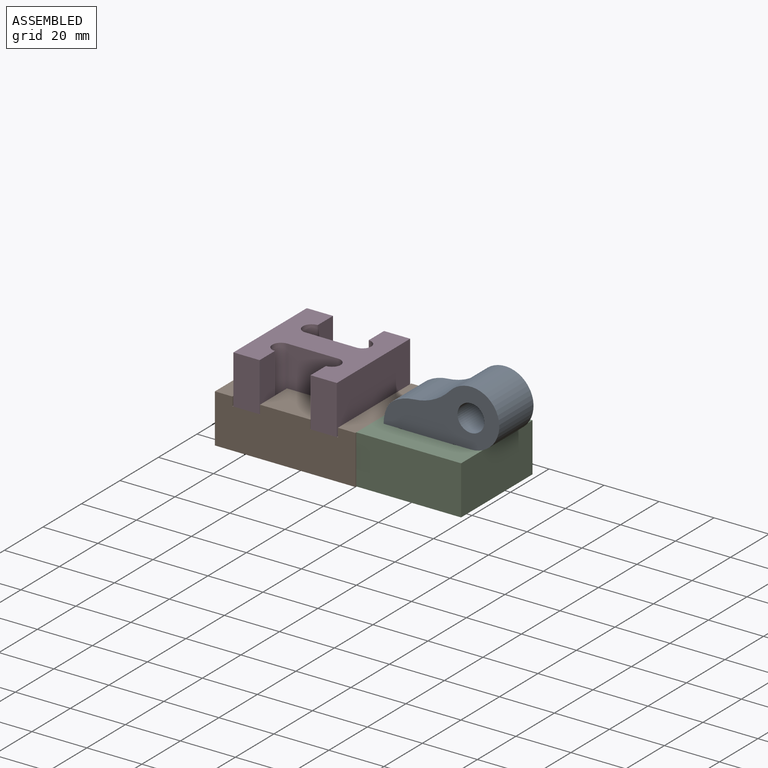
[diagram: assembled view]
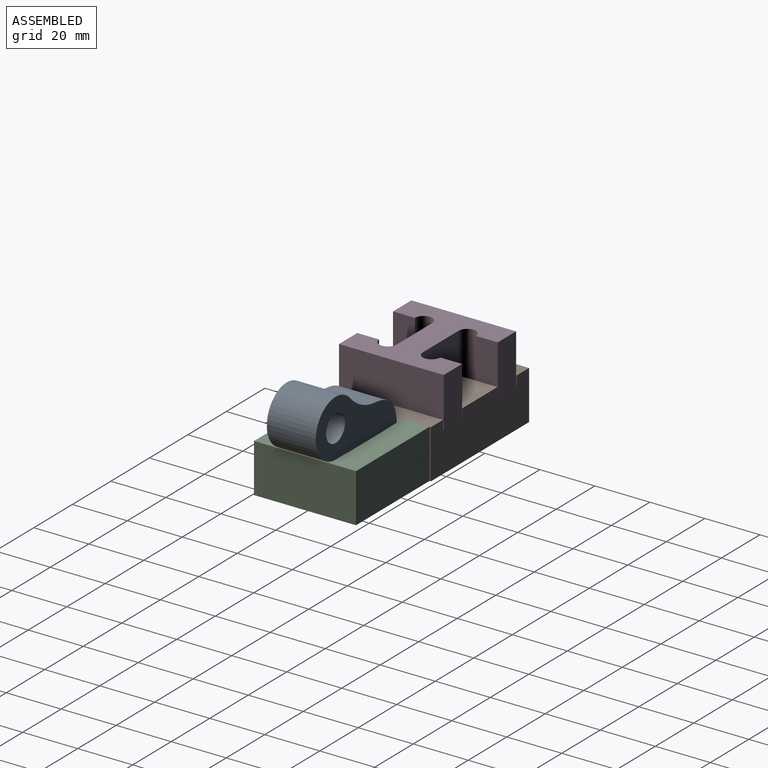
[diagram: assembled view, second angle]
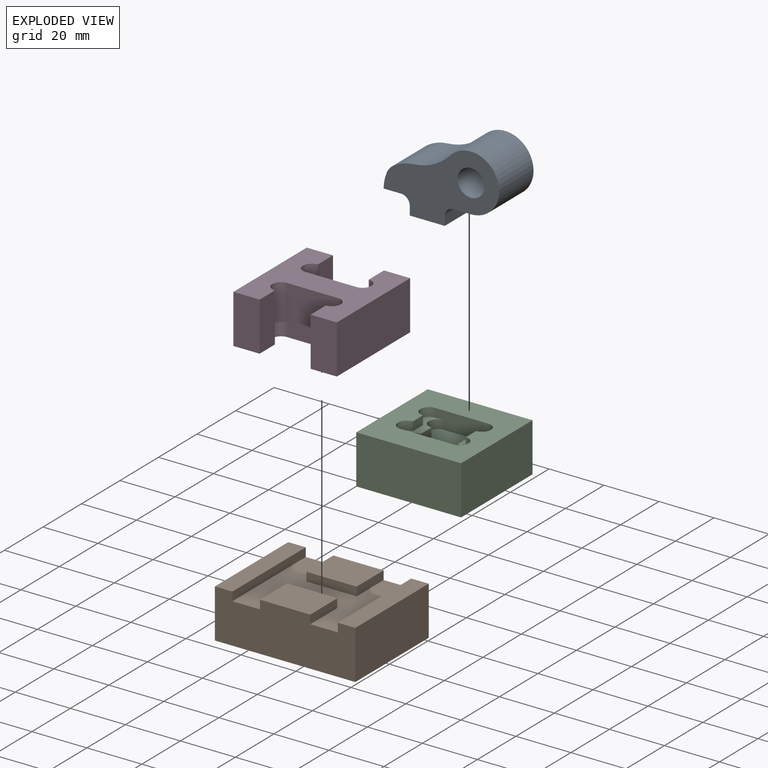
[diagram: exploded view]
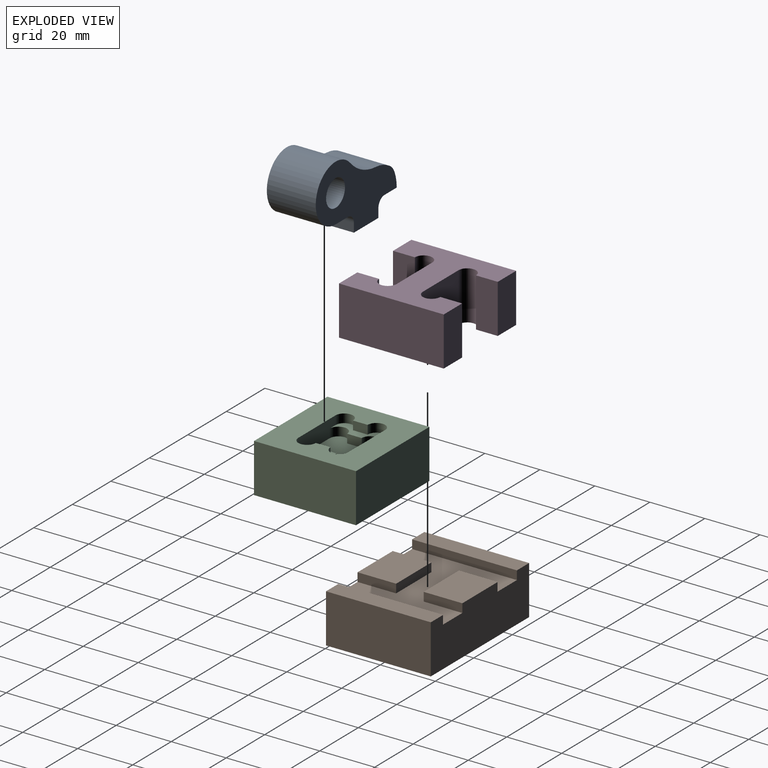
[diagram: exploded view, second angle]
ASSEMBLY  parts=4 mates=3
PART A: 15 faces, bbox 42.1x27x17.8 mm
  f0: plane 17.78x6.35mm, normal (0,-1,0), area 112.9mm2, adj f1,f12,f13,f14
  f1: cylinder r=10.32mm len=20.64mm, axis (0,0,1), area 728.9mm2, adj f0,f2,f13,f14
  f2: cylinder r=19.6mm len=17.78mm, axis (0,0,1), area 267.1mm2, adj f1,f3,f13,f14
  f3: cylinder r=15.21mm len=17.78mm, axis (0,0,1), area 139.4mm2, adj f2,f4,f13,f14
  f4: cylinder r=6.48mm len=17.78mm, axis (0,0,1), area 66.8mm2, adj f3,f5,f13,f14
  f5: cylinder r=14.11mm len=17.78mm, axis (0,0,1), area 103.1mm2, adj f4,f6,f13,f14
  f6: plane 17.78x6.35mm, normal (0,-1,0), area 112.9mm2, adj f5,f7,f13,f14
  f7: cylinder r=3.17mm len=17.78mm, axis (0,0,1), area 88.7mm2, adj f6,f8,f13,f14
  f8: plane 17.78x3.18mm, normal (-1,0,0), area 56.5mm2, adj f7,f9,f13,f14
  f9: plane 17.78x12.7mm, normal (0,-1,0), area 225.8mm2, adj f8,f10,f13,f14
  f10: plane 17.78x3.18mm, normal (1,0,0), area 56.5mm2, adj f9,f12,f13,f14
  f11: cylinder r=4.89mm len=17.78mm, axis (0,0,1), area 546.2mm2, adj f13,f14
  f12: cylinder r=3.17mm len=17.78mm, axis (0,0,1), area 88.7mm2, adj f0,f10,f13,f14
  f13: plane 42.07x26.99mm, normal (0,0,-1), area 594.6mm2, adj f0,f1,f2,f3,f4,f5,f6,f7
  f14: plane 42.07x26.99mm, normal (0,0,1), area 594.6mm2, adj f0,f1,f2,f3,f4,f5,f6,f7
PART B: 18 faces, bbox 51.1x38.1x17.8 mm
  f0: plane 51.05x17.78mm, normal (0,-1,0), area 844mm2, adj f1,f2,f3,f5,f6,f7,f9,f10
  f1: plane 18.29x14.03mm, normal (0,0,1), area 256.6mm2, adj f0,f10,f11,f12
  f2: plane 38.1x6.35mm, normal (0,0,1), area 241.9mm2, adj f0,f4,f6,f13
  f3: plane 38.1x6.35mm, normal (0,0,1), area 241.9mm2, adj f0,f4,f5,f9
  f4: plane 51.05x17.78mm, normal (0,1,0), area 844mm2, adj f2,f3,f5,f6,f7,f8,f9,f13
  f5: plane 38.1x17.78mm, normal (-1,0,0), area 677.4mm2, adj f0,f3,f4,f7
  f6: plane 38.1x17.78mm, normal (1,0,0), area 677.4mm2, adj f0,f2,f4,f7
  f7: plane 51.05x38.1mm, normal (0,0,-1), area 1945.2mm2, adj f0,f4,f5,f6
  f8: plane 18.29x14.03mm, normal (0,0,1), area 256.6mm2, adj f4,f14,f15,f16
  f9: plane 38.1x3.18mm, normal (1,0,0), area 121mm2, adj f0,f3,f4,f17
  f10: plane 14.03x3.18mm, normal (-1,0,0), area 44.6mm2, adj f0,f1,f11,f17
  f11: plane 18.29x3.18mm, normal (0,1,0), area 58.1mm2, adj f1,f10,f12,f17
  f12: plane 14.03x3.18mm, normal (1,0,0), area 44.6mm2, adj f0,f1,f11,f17
  f13: plane 38.1x3.18mm, normal (-1,0,0), area 121mm2, adj f0,f2,f4,f17
  f14: plane 14.03x3.18mm, normal (1,0,0), area 44.6mm2, adj f4,f8,f15,f17
  f15: plane 18.29x3.18mm, normal (0,-1,0), area 58.1mm2, adj f8,f14,f16,f17
  f16: plane 14.03x3.18mm, normal (-1,0,0), area 44.6mm2, adj f4,f8,f15,f17
  f17: plane 38.35x38.1mm, normal (0,0,1), area 948mm2, adj f0,f4,f9,f10,f11,f12,f13,f14
PART C: 23 faces, bbox 38.1x37.1x17.8 mm
  f0: plane 18.03x6.22mm, normal (0,0,1), area 55mm2, adj f7,f11,f12,f13,f14,f16,f17,f18
  f1: plane 38.1x17.78mm, normal (0,-1,0), area 677.4mm2, adj f2,f4,f5,f6
  f2: plane 37.08x17.78mm, normal (1,0,0), area 659.4mm2, adj f1,f3,f5,f6
  f3: plane 38.1x17.78mm, normal (0,1,0), area 677.4mm2, adj f2,f4,f5,f6
  f4: plane 37.08x17.78mm, normal (-1,0,0), area 659.4mm2, adj f1,f3,f5,f6
  f5: plane 38.1x37.08mm, normal (0,0,-1), area 1412.9mm2, adj f1,f2,f3,f4
  f6: plane 38.1x37.08mm, normal (0,0,1), area 1001.4mm2, adj f1,f2,f3,f4,f7,f8,f9,f10
  f7: plane 19.3x6.35mm, normal (0,-1,0), area 103.2mm2, adj f0,f6,f8,f14,f15,f18,f19,f22
  f8: cylinder r=3.17mm len=6.35mm, axis (0,0,1), area 31.7mm2, adj f6,f7,f9,f15
  f9: plane 5.33x3.18mm, normal (1,0,0), area 16.9mm2, adj f6,f8,f10,f15
  f10: cylinder r=3.17mm len=6.35mm, axis (0,0,1), area 31.7mm2, adj f6,f9,f11,f15
  f11: plane 19.3x6.35mm, normal (0,1,0), area 103.2mm2, adj f0,f6,f10,f12,f15,f16,f21,f22
  f12: cylinder r=3.17mm len=6.35mm, axis (0,0,1), area 31.7mm2, adj f0,f6,f11,f13
  f13: plane 5.33x3.18mm, normal (-1,0,0), area 16.9mm2, adj f0,f6,f12,f14
  f14: cylinder r=3.17mm len=6.35mm, axis (0,0,1), area 31.7mm2, adj f0,f6,f7,f13
  f15: plane 18.03x6.22mm, normal (0,0,1), area 55mm2, adj f7,f8,f9,f10,f11,f19,f20,f21
  f16: cylinder r=3.17mm len=6.35mm, axis (0,0,1), area 31.7mm2, adj f0,f11,f17,f22
  f17: plane 5.33x3.18mm, normal (-1,0,0), area 16.9mm2, adj f0,f16,f18,f22
  f18: cylinder r=3.17mm len=6.35mm, axis (0,0,1), area 31.7mm2, adj f0,f7,f17,f22
  f19: cylinder r=3.17mm len=6.35mm, axis (0,0,1), area 31.7mm2, adj f7,f15,f20,f22
  f20: plane 5.33x3.18mm, normal (1,0,0), area 16.9mm2, adj f15,f19,f21,f22
  f21: cylinder r=3.17mm len=6.35mm, axis (0,0,1), area 31.7mm2, adj f11,f15,f20,f22
  f22: plane 19.56x18.03mm, normal (0,0,1), area 301.5mm2, adj f7,f11,f16,f17,f18,f19,f20,f21
PART D: 18 faces, bbox 38.1x37.6x17.8 mm
  f0: cylinder r=3.17mm len=17.78mm, axis (0,0,1), area 177.3mm2, adj f1,f15,f16,f17
  f1: plane 17.78x7.94mm, normal (0,-1,0), area 141.1mm2, adj f0,f2,f16,f17
  f2: plane 17.78x9.53mm, normal (1,0,0), area 169.4mm2, adj f1,f3,f16,f17
  f3: plane 38.1x17.78mm, normal (0,1,0), area 677.4mm2, adj f2,f4,f16,f17
  f4: plane 17.78x9.53mm, normal (-1,0,0), area 169.4mm2, adj f3,f5,f16,f17
  f5: plane 17.78x7.94mm, normal (0,-1,0), area 141.1mm2, adj f4,f6,f16,f17
  f6: cylinder r=3.17mm len=17.78mm, axis (0,0,1), area 177.3mm2, adj f5,f7,f16,f17
  f7: plane 18.54x17.78mm, normal (-1,0,0), area 329.7mm2, adj f6,f8,f16,f17
  f8: cylinder r=3.17mm len=17.78mm, axis (0,0,1), area 177.3mm2, adj f7,f9,f16,f17
  f9: plane 17.78x7.94mm, normal (0,1,0), area 141.1mm2, adj f8,f10,f16,f17
  f10: plane 17.78x9.53mm, normal (-1,0,0), area 169.4mm2, adj f9,f11,f16,f17
  f11: plane 38.1x17.78mm, normal (0,-1,0), area 677.4mm2, adj f10,f12,f16,f17
  f12: plane 17.78x9.53mm, normal (1,0,0), area 169.4mm2, adj f11,f13,f16,f17
  f13: plane 17.78x7.94mm, normal (0,1,0), area 141.1mm2, adj f12,f14,f16,f17
  f14: cylinder r=3.17mm len=17.78mm, axis (0,0,1), area 177.3mm2, adj f13,f15,f16,f17
  f15: plane 18.54x17.78mm, normal (1,0,0), area 329.7mm2, adj f0,f14,f16,f17
  f16: plane 38.1x37.59mm, normal (0,0,-1), area 839.1mm2, adj f0,f1,f2,f3,f4,f5,f6,f7
  f17: plane 38.1x37.59mm, normal (0,0,1), area 839.1mm2, adj f0,f1,f2,f3,f4,f5,f6,f7
PLACE A rot(axis=(1,0,0),90deg) t=(32.54,-8.89,11.43)mm
PLACE B t=(-121.03,-19.05,17.78)mm
PLACE C t=(-22.35,-18.54,17.78)mm
PLACE D rot(axis=(0,0,1),90deg) t=(-25.78,76.99,32.38)mm
MATE fastened B.f6 <-> C.f4  axis (1,0,0) through (-19.05,0,8.89)mm
MATE fastened A.f9 <-> C.f22  axis (0,0,-1) through (0,0,11.43)mm
MATE fastened B.f17 <-> D.f16  axis (0,0,1) through (-44.58,0,14.6)mm
